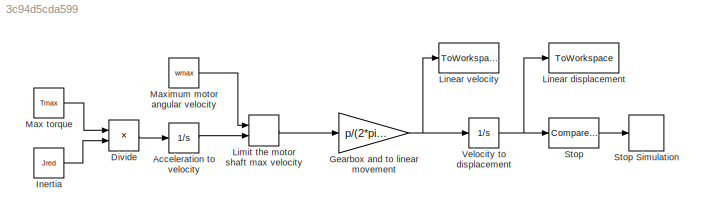
MODEL slx_3c94d5cda599
KIND model
CONFIG AbsTol = auto
CONFIG FixedStep = auto
CONFIG MaxStep = auto
CONFIG MinStep = auto
CONFIG RelTol = 1e-3
CONFIG SampleTimeConstraint = Unconstrained
CONFIG Solver = ode45
CONFIG SolverMode = Auto
CONFIG SolverName = ode45
CONFIG StartTime = 0.0
CONFIG StopTime = 10.0
BLOCK [Integrator] Acceleration to velocity
  Ports = [1, 1]
BLOCK [Product] Divide
  InputSameDT = off
  Inputs = */
  OutDataTypeStr = Inherit: Inherit via internal rule
  Ports = [2, 1]
  RndMeth = Floor
  SaturateOnIntegerOverflow = off
BLOCK [Gain] Gearbox and to linear movement
  Gain = p/(2*pi*g)
  OutDataTypeStr = Inherit: Inherit via internal rule
  ParamDataTypeStr = Inherit: Inherit via internal rule
  SaturateOnIntegerOverflow = off
BLOCK [Constant] Inertia
  Value = Jred
BLOCK [MinMax] Limit the motor shaft max velocity
  InputSameDT = off
  Inputs = 2
  Ports = [2, 1]
  SaturateOnIntegerOverflow = off
BLOCK [ToWorkspace] Linear displacement
  FixptAsFi = on
  MaxDataPoints = inf
  Ports = [1]
  SampleTime = -1
  Save2DSignal = 3-D array (concatenate along third dimension)
  SaveFormat = Timeseries
  VariableName = displacement
BLOCK [ToWorkspace] Linear velocity
  FixptAsFi = on
  MaxDataPoints = inf
  Ports = [1]
  SampleTime = -1
  Save2DSignal = 3-D array (concatenate along third dimension)
  SaveFormat = Timeseries
  VariableName = velocity
BLOCK [Constant] Max torque 
  Value = Tmax
BLOCK [Constant] Maximum motor angular velocity
  Value = wmax
BLOCK [Reference] Stop  REF=simulink/Logic and Bit
Operations/Compare
To Constant
  Ports = [1, 1]
  SourceBlock = simulink/Logic and Bit\nOperations/Compare\nTo Constant
  SourceType = Compare To Constant
BLOCK [Stop] Stop Simulation
BLOCK [Integrator] Velocity to displacement
  Ports = [1, 1]
LINE Acceleration to velocity:1 -> Limit the motor shaft max velocity:2
LINE Divide:1 -> Acceleration to velocity:1
NET Gearbox and to linear movement:1 -> Linear velocity:1, Velocity to displacement:1
LINE Inertia:1 -> Divide:2
LINE Limit the motor shaft max velocity:1 -> Gearbox and to linear movement:1
LINE Max torque :1 -> Divide:1
LINE Maximum motor angular velocity:1 -> Limit the motor shaft max velocity:1
LINE Stop:1 -> Stop Simulation:1
NET Velocity to displacement:1 -> Linear displacement:1, Stop:1
note: NET lines group one-source signal fan-out (src -> all destinations, sorted); 1:1 wires keep LINE
